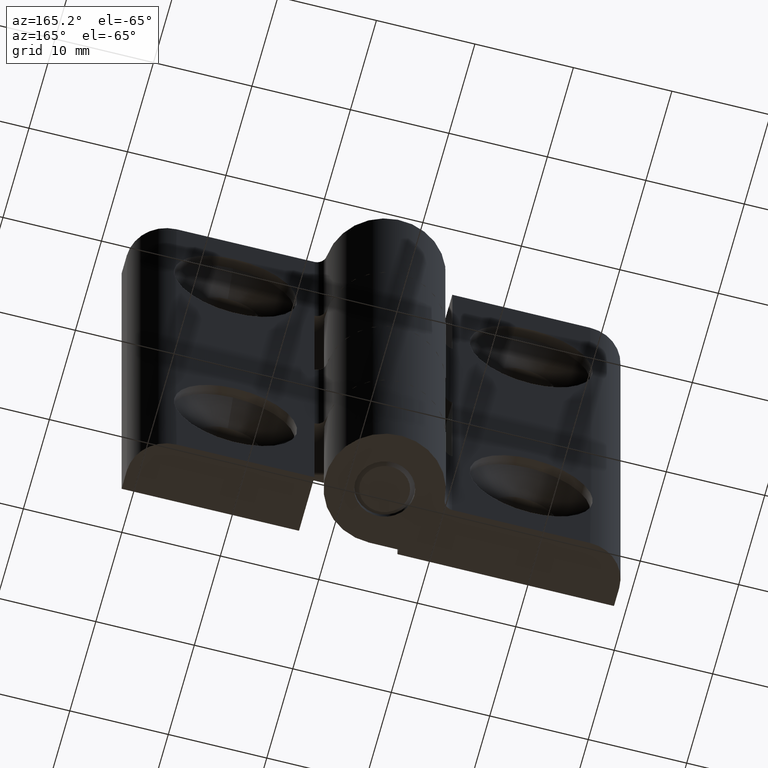
[diagram: clean part render]
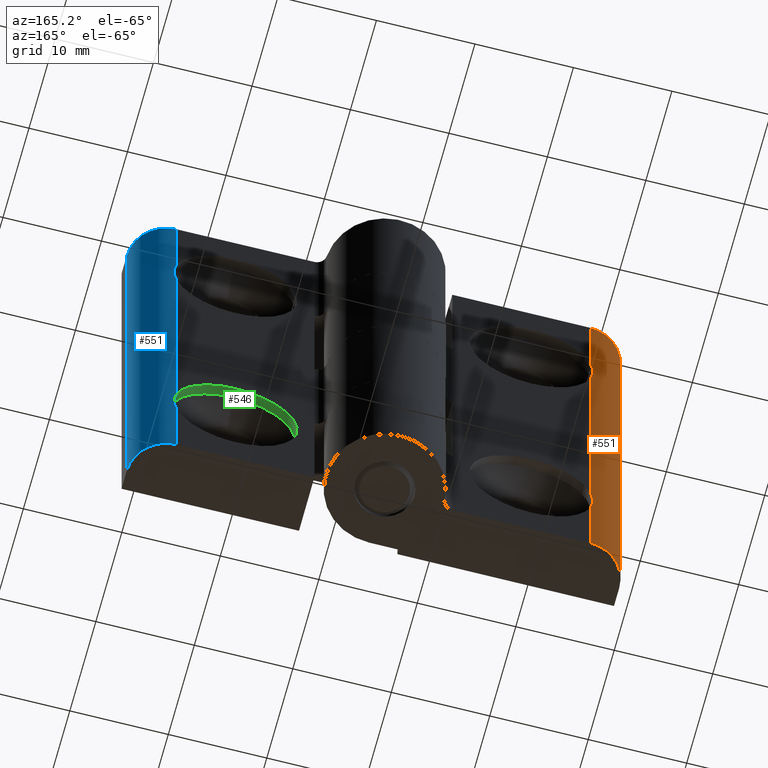
[diagram: same view with three faces highlighted in distinct colors, each labeled with its STEP entity id]
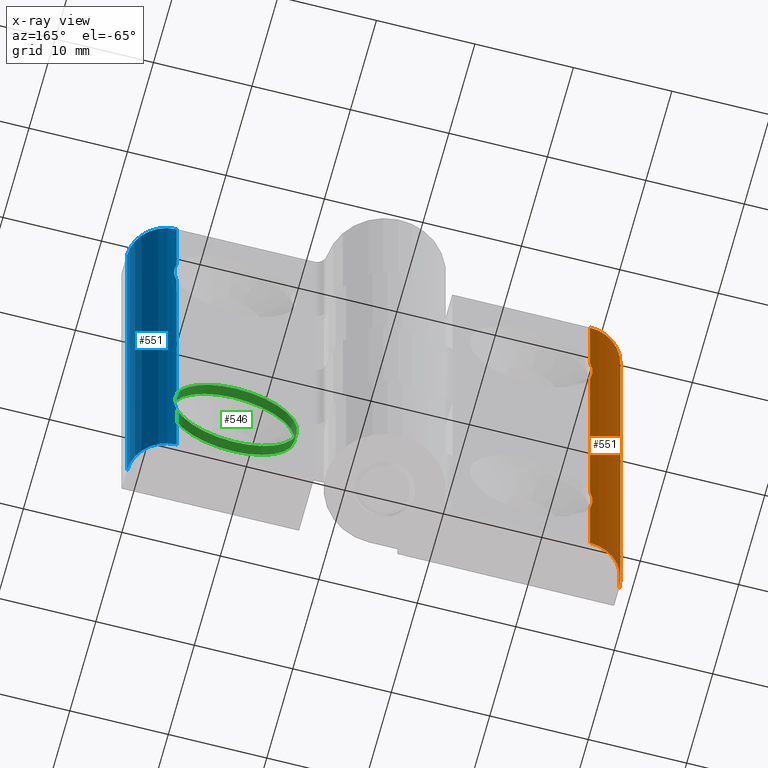
[diagram: x-ray of the same camera — body ghosted, the three highlighted faces saturated]
A machine part, auxiliary view with three faces highlighted in distinct colors.
The next image is the same camera in x-ray (body ghosted, the three faces saturated) — at least one of them is partly hidden behind the body in this view.
Their STEP definitions:

[orange] entity #551 — the highlighted cylindrical surface (partial cylindrical patch) has radius 4 mm, axis along (0, 0, 1).
#52=LINE('',#884,#95);
#53=LINE('',#885,#96);
#54=LINE('',#887,#97);
#58=LINE('',#894,#101);
#95=VECTOR('',#687,8.25000000000001);
#96=VECTOR('',#688,26.5);
#97=VECTOR('',#689,8.25);
#101=VECTOR('',#695,50.);
#157=B_SPLINE_CURVE_WITH_KNOTS('',3,(#818,#819,#820,#821,#822,#823),
 .UNSPECIFIED.,.F.,.F.,(4,2,4),(0.787149185360134,0.957185667053921,1.12722214874771),
 .UNSPECIFIED.);
#158=B_SPLINE_CURVE_WITH_KNOTS('',3,(#836,#837,#838,#839,#840,#841),
 .UNSPECIFIED.,.F.,.F.,(4,2,4),(0.787149185360135,0.957185667053921,1.12722214874771),
 .UNSPECIFIED.);
#167=FACE_OUTER_BOUND('',#206,.T.);
#206=EDGE_LOOP('',(#438,#439,#440,#441,#442,#443,#444,#445));
#247=CIRCLE('',#593,4.);
#251=CIRCLE('',#598,4.);
#267=VERTEX_POINT('',#816);
#268=VERTEX_POINT('',#817);
#272=VERTEX_POINT('',#834);
#273=VERTEX_POINT('',#835);
#293=VERTEX_POINT('',#882);
#294=VERTEX_POINT('',#886);
#295=VERTEX_POINT('',#890);
#296=VERTEX_POINT('',#892);
#319=EDGE_CURVE('',#267,#268,#157,.F.);
#324=EDGE_CURVE('',#272,#273,#158,.F.);
#345=EDGE_CURVE('',#268,#293,#52,.T.);
#346=EDGE_CURVE('',#273,#267,#53,.T.);
#347=EDGE_CURVE('',#294,#272,#54,.T.);
#351=EDGE_CURVE('',#296,#295,#58,.T.);
#353=EDGE_CURVE('',#293,#295,#247,.T.);
#358=EDGE_CURVE('',#294,#296,#251,.T.);
#438=ORIENTED_EDGE('',*,*,#319,.T.);
#439=ORIENTED_EDGE('',*,*,#345,.T.);
#440=ORIENTED_EDGE('',*,*,#353,.T.);
#441=ORIENTED_EDGE('',*,*,#351,.F.);
#442=ORIENTED_EDGE('',*,*,#358,.F.);
#443=ORIENTED_EDGE('',*,*,#347,.T.);
#444=ORIENTED_EDGE('',*,*,#324,.T.);
#445=ORIENTED_EDGE('',*,*,#346,.T.);
#534=CYLINDRICAL_SURFACE('',#597,4.);
#551=ADVANCED_FACE('',(#167),#534,.T.);
#593=AXIS2_PLACEMENT_3D('',#898,#699,#700);
#597=AXIS2_PLACEMENT_3D('',#906,#708,#709);
#598=AXIS2_PLACEMENT_3D('',#907,#710,#711);
#687=DIRECTION('',(0.,0.,-1.));
#688=DIRECTION('',(0.,0.,-1.));
#689=DIRECTION('',(0.,0.,-1.));
#695=DIRECTION('',(0.,0.,-1.));
#699=DIRECTION('center_axis',(0.,0.,1.));
#700=DIRECTION('ref_axis',(1.,0.,0.));
#708=DIRECTION('center_axis',(0.,0.,1.));
#709=DIRECTION('ref_axis',(-1.,0.,0.));
#710=DIRECTION('center_axis',(0.,0.,1.));
#711=DIRECTION('ref_axis',(1.,0.,0.));
#816=CARTESIAN_POINT('',(-21.,6.,-13.25));
#817=CARTESIAN_POINT('',(-21.,6.,-16.75));
#818=CARTESIAN_POINT('Ctrl Pts',(-21.,6.,-16.75));
#819=CARTESIAN_POINT('Ctrl Pts',(-21.1692973273697,6.,-16.1695520204466));
#820=CARTESIAN_POINT('Ctrl Pts',(-21.25,5.99217985566783,-15.5667882723126));
#821=CARTESIAN_POINT('Ctrl Pts',(-21.25,5.99217985566783,-14.4332117276874));
#822=CARTESIAN_POINT('Ctrl Pts',(-21.1692973273697,6.,-13.8304479795534));
#823=CARTESIAN_POINT('Ctrl Pts',(-21.,6.,-13.25));
#834=CARTESIAN_POINT('',(-21.,6.,16.75));
#835=CARTESIAN_POINT('',(-21.,6.,13.25));
#836=CARTESIAN_POINT('Ctrl Pts',(-21.,6.,13.25));
#837=CARTESIAN_POINT('Ctrl Pts',(-21.1692973273697,6.,13.8304479795534));
#838=CARTESIAN_POINT('Ctrl Pts',(-21.25,5.99217985566783,14.4332117276874));
#839=CARTESIAN_POINT('Ctrl Pts',(-21.25,5.99217985566783,15.5667882723126));
#840=CARTESIAN_POINT('Ctrl Pts',(-21.1692973273697,6.,16.1695520204466));
#841=CARTESIAN_POINT('Ctrl Pts',(-21.,6.,16.75));
#882=CARTESIAN_POINT('',(-21.,6.,-25.));
#884=CARTESIAN_POINT('',(-21.,6.,25.));
#885=CARTESIAN_POINT('',(-21.,6.,25.));
#886=CARTESIAN_POINT('',(-21.,6.,25.));
#887=CARTESIAN_POINT('',(-21.,6.,25.));
#890=CARTESIAN_POINT('',(-25.,2.,-25.));
#892=CARTESIAN_POINT('',(-25.,2.,25.));
#894=CARTESIAN_POINT('',(-25.,2.,25.));
#898=CARTESIAN_POINT('Origin',(-21.,2.,-25.));
#906=CARTESIAN_POINT('Origin',(-21.,2.,25.));
#907=CARTESIAN_POINT('Origin',(-21.,2.,25.));

[blue] entity #551 — the highlighted cylindrical surface (partial cylindrical patch) has radius 4 mm, axis along (-0, -0, -1).
#52=LINE('',#884,#95);
#53=LINE('',#885,#96);
#54=LINE('',#887,#97);
#58=LINE('',#894,#101);
#95=VECTOR('',#687,8.25000000000001);
#96=VECTOR('',#688,26.5);
#97=VECTOR('',#689,8.25);
#101=VECTOR('',#695,50.);
#157=B_SPLINE_CURVE_WITH_KNOTS('',3,(#818,#819,#820,#821,#822,#823),
 .UNSPECIFIED.,.F.,.F.,(4,2,4),(0.787149185360134,0.957185667053921,1.12722214874771),
 .UNSPECIFIED.);
#158=B_SPLINE_CURVE_WITH_KNOTS('',3,(#836,#837,#838,#839,#840,#841),
 .UNSPECIFIED.,.F.,.F.,(4,2,4),(0.787149185360135,0.957185667053921,1.12722214874771),
 .UNSPECIFIED.);
#167=FACE_OUTER_BOUND('',#206,.T.);
#206=EDGE_LOOP('',(#438,#439,#440,#441,#442,#443,#444,#445));
#247=CIRCLE('',#593,4.);
#251=CIRCLE('',#598,4.);
#267=VERTEX_POINT('',#816);
#268=VERTEX_POINT('',#817);
#272=VERTEX_POINT('',#834);
#273=VERTEX_POINT('',#835);
#293=VERTEX_POINT('',#882);
#294=VERTEX_POINT('',#886);
#295=VERTEX_POINT('',#890);
#296=VERTEX_POINT('',#892);
#319=EDGE_CURVE('',#267,#268,#157,.F.);
#324=EDGE_CURVE('',#272,#273,#158,.F.);
#345=EDGE_CURVE('',#268,#293,#52,.T.);
#346=EDGE_CURVE('',#273,#267,#53,.T.);
#347=EDGE_CURVE('',#294,#272,#54,.T.);
#351=EDGE_CURVE('',#296,#295,#58,.T.);
#353=EDGE_CURVE('',#293,#295,#247,.T.);
#358=EDGE_CURVE('',#294,#296,#251,.T.);
#438=ORIENTED_EDGE('',*,*,#319,.T.);
#439=ORIENTED_EDGE('',*,*,#345,.T.);
#440=ORIENTED_EDGE('',*,*,#353,.T.);
#441=ORIENTED_EDGE('',*,*,#351,.F.);
#442=ORIENTED_EDGE('',*,*,#358,.F.);
#443=ORIENTED_EDGE('',*,*,#347,.T.);
#444=ORIENTED_EDGE('',*,*,#324,.T.);
#445=ORIENTED_EDGE('',*,*,#346,.T.);
#534=CYLINDRICAL_SURFACE('',#597,4.);
#551=ADVANCED_FACE('',(#167),#534,.T.);
#593=AXIS2_PLACEMENT_3D('',#898,#699,#700);
#597=AXIS2_PLACEMENT_3D('',#906,#708,#709);
#598=AXIS2_PLACEMENT_3D('',#907,#710,#711);
#687=DIRECTION('',(0.,0.,-1.));
#688=DIRECTION('',(0.,0.,-1.));
#689=DIRECTION('',(0.,0.,-1.));
#695=DIRECTION('',(0.,0.,-1.));
#699=DIRECTION('center_axis',(0.,0.,1.));
#700=DIRECTION('ref_axis',(1.,0.,0.));
#708=DIRECTION('center_axis',(0.,0.,1.));
#709=DIRECTION('ref_axis',(-1.,0.,0.));
#710=DIRECTION('center_axis',(0.,0.,1.));
#711=DIRECTION('ref_axis',(1.,0.,0.));
#816=CARTESIAN_POINT('',(-21.,6.,-13.25));
#817=CARTESIAN_POINT('',(-21.,6.,-16.75));
#818=CARTESIAN_POINT('Ctrl Pts',(-21.,6.,-16.75));
#819=CARTESIAN_POINT('Ctrl Pts',(-21.1692973273697,6.,-16.1695520204466));
#820=CARTESIAN_POINT('Ctrl Pts',(-21.25,5.99217985566783,-15.5667882723126));
#821=CARTESIAN_POINT('Ctrl Pts',(-21.25,5.99217985566783,-14.4332117276874));
#822=CARTESIAN_POINT('Ctrl Pts',(-21.1692973273697,6.,-13.8304479795534));
#823=CARTESIAN_POINT('Ctrl Pts',(-21.,6.,-13.25));
#834=CARTESIAN_POINT('',(-21.,6.,16.75));
#835=CARTESIAN_POINT('',(-21.,6.,13.25));
#836=CARTESIAN_POINT('Ctrl Pts',(-21.,6.,13.25));
#837=CARTESIAN_POINT('Ctrl Pts',(-21.1692973273697,6.,13.8304479795534));
#838=CARTESIAN_POINT('Ctrl Pts',(-21.25,5.99217985566783,14.4332117276874));
#839=CARTESIAN_POINT('Ctrl Pts',(-21.25,5.99217985566783,15.5667882723126));
#840=CARTESIAN_POINT('Ctrl Pts',(-21.1692973273697,6.,16.1695520204466));
#841=CARTESIAN_POINT('Ctrl Pts',(-21.,6.,16.75));
#882=CARTESIAN_POINT('',(-21.,6.,-25.));
#884=CARTESIAN_POINT('',(-21.,6.,25.));
#885=CARTESIAN_POINT('',(-21.,6.,25.));
#886=CARTESIAN_POINT('',(-21.,6.,25.));
#887=CARTESIAN_POINT('',(-21.,6.,25.));
#890=CARTESIAN_POINT('',(-25.,2.,-25.));
#892=CARTESIAN_POINT('',(-25.,2.,25.));
#894=CARTESIAN_POINT('',(-25.,2.,25.));
#898=CARTESIAN_POINT('Origin',(-21.,2.,-25.));
#906=CARTESIAN_POINT('Origin',(-21.,2.,25.));
#907=CARTESIAN_POINT('Origin',(-21.,2.,25.));

[green] entity #546 — the highlighted cylindrical surface (bore or boss wall) has radius 6.25 mm, axis along (0.0029, 1, -0).
#143=FACE_BOUND('',#198,.T.);
#158=B_SPLINE_CURVE_WITH_KNOTS('',3,(#836,#837,#838,#839,#840,#841),
 .UNSPECIFIED.,.F.,.F.,(4,2,4),(0.787149185360135,0.957185667053921,1.12722214874771),
 .UNSPECIFIED.);
#162=FACE_OUTER_BOUND('',#197,.T.);
#197=EDGE_LOOP('',(#396));
#198=EDGE_LOOP('',(#397,#398));
#244=CIRCLE('',#585,6.25);
#245=CIRCLE('',#587,6.25);
#271=VERTEX_POINT('',#831);
#272=VERTEX_POINT('',#834);
#273=VERTEX_POINT('',#835);
#323=EDGE_CURVE('',#271,#271,#244,.T.);
#324=EDGE_CURVE('',#272,#273,#158,.F.);
#325=EDGE_CURVE('',#272,#273,#245,.F.);
#396=ORIENTED_EDGE('',*,*,#323,.T.);
#397=ORIENTED_EDGE('',*,*,#324,.F.);
#398=ORIENTED_EDGE('',*,*,#325,.T.);
#533=CYLINDRICAL_SURFACE('',#586,6.25);
#546=ADVANCED_FACE('',(#162,#143),#533,.F.);
#585=AXIS2_PLACEMENT_3D('',#832,#657,#658);
#586=AXIS2_PLACEMENT_3D('',#833,#659,#660);
#587=AXIS2_PLACEMENT_3D('',#842,#661,#662);
#657=DIRECTION('center_axis',(0.,-1.,0.));
#658=DIRECTION('ref_axis',(0.,0.,-1.));
#659=DIRECTION('center_axis',(0.,1.,0.));
#660=DIRECTION('ref_axis',(0.,0.,-1.));
#661=DIRECTION('center_axis',(0.,-1.,0.));
#662=DIRECTION('ref_axis',(0.,0.,-1.));
#831=CARTESIAN_POINT('',(-15.,5.,8.75));
#832=CARTESIAN_POINT('Origin',(-15.,5.,15.));
#833=CARTESIAN_POINT('Origin',(-15.,0.,15.));
#834=CARTESIAN_POINT('',(-21.,6.,16.75));
#835=CARTESIAN_POINT('',(-21.,6.,13.25));
#836=CARTESIAN_POINT('Ctrl Pts',(-21.,6.,13.25));
#837=CARTESIAN_POINT('Ctrl Pts',(-21.1692973273697,6.,13.8304479795534));
#838=CARTESIAN_POINT('Ctrl Pts',(-21.25,5.99217985566783,14.4332117276874));
#839=CARTESIAN_POINT('Ctrl Pts',(-21.25,5.99217985566783,15.5667882723126));
#840=CARTESIAN_POINT('Ctrl Pts',(-21.1692973273697,6.,16.1695520204466));
#841=CARTESIAN_POINT('Ctrl Pts',(-21.,6.,16.75));
#842=CARTESIAN_POINT('Origin',(-15.,6.,15.));